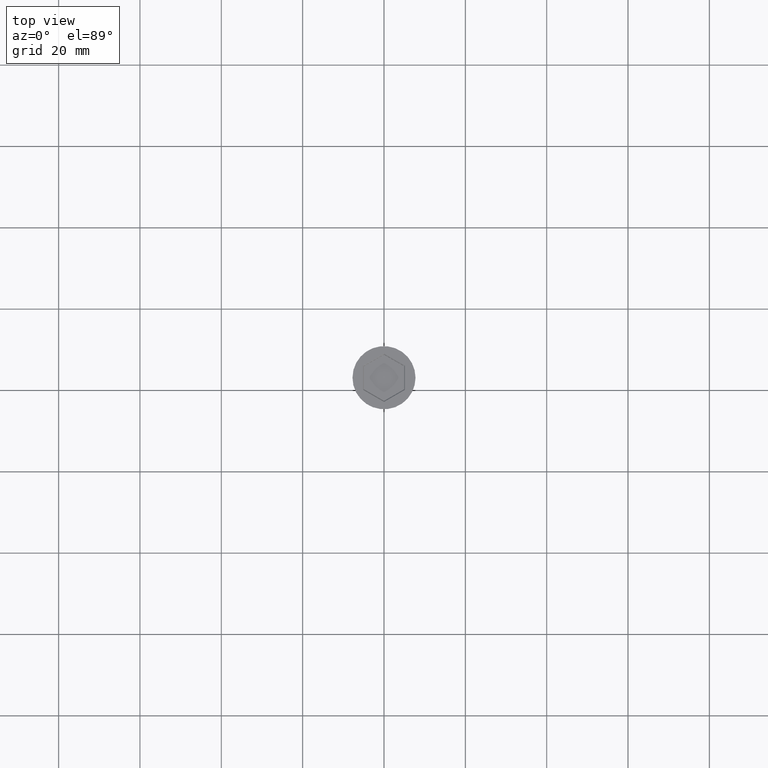
[diagram: clean part render]
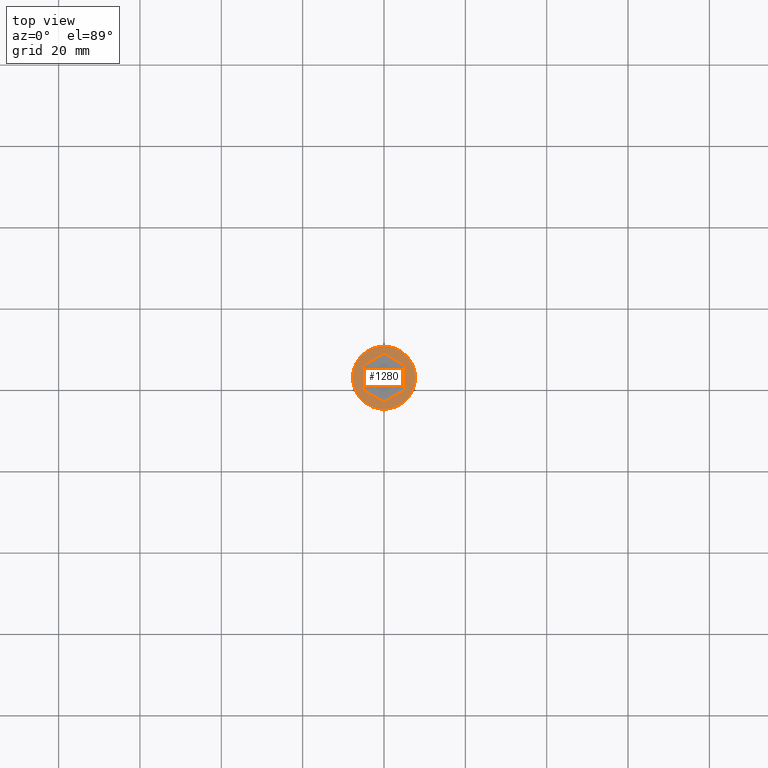
[diagram: same view with one face highlighted and labeled with its STEP entity id]
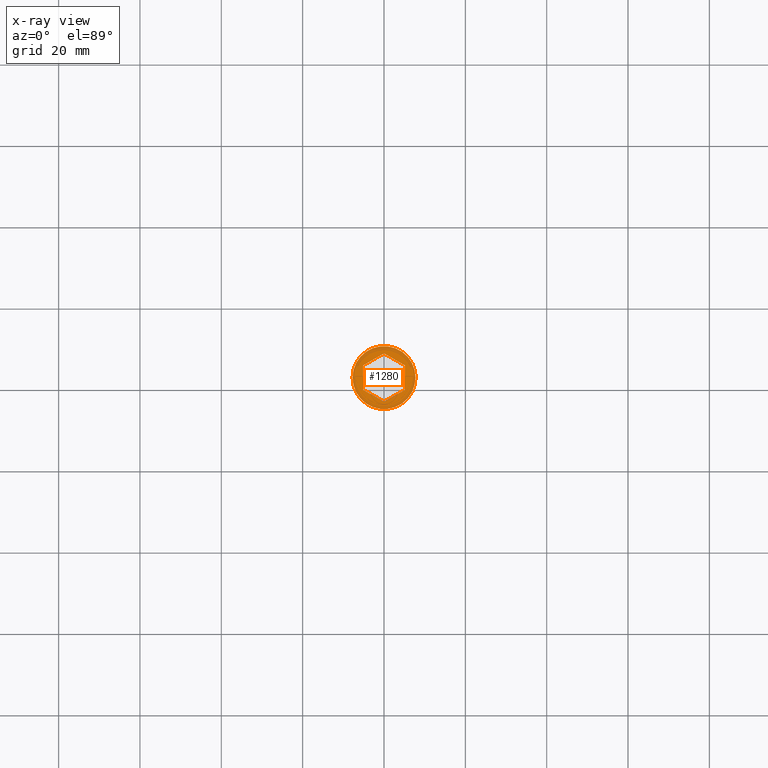
[diagram: x-ray of the same camera — body ghosted, the highlighted face saturated]
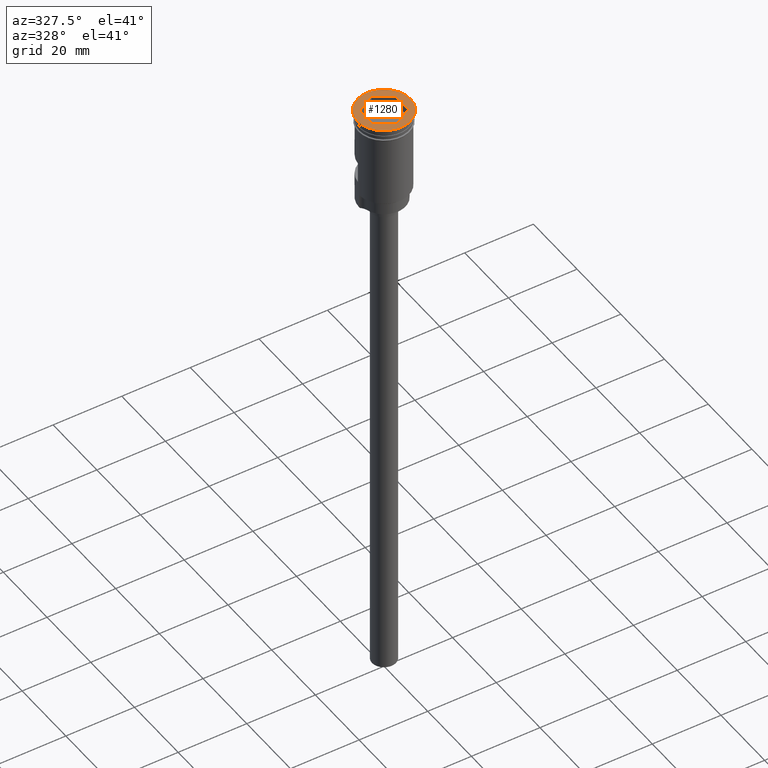
[diagram: same view with one face highlighted and labeled with its STEP entity id]
A machine part, top view. The second image highlights one B-rep face of the part: STEP entity #1280.
The next image is the same camera in x-ray: the body ghosted, the highlighted face saturated — about 0% of this face is hidden behind the body in this view.
A second angle (auxiliary view) of the same face is appended — the face is thin or edge-on in the first view.
In plain terms, the highlighted planar face has unit normal (0, -0, 1).
Its self-contained STEP definition (entity closure, byte-faithful):
#11 = LINE ( 'NONE', #252, #698 ) ;
#13 = CARTESIAN_POINT ( 'NONE',  ( -1.734199444926773404E-16, 5.946707772653141433, 0.000000000000000000 ) ) ;
#16 = VECTOR ( 'NONE', #426, 1000.000000000000114 ) ;
#37 = PLANE ( 'NONE',  #195 ) ;
#40 = LINE ( 'NONE', #897, #609 ) ;
#56 = CARTESIAN_POINT ( 'NONE',  ( 0.09999999999999799327, -5.888972745734180947, 0.000000000000000000 ) ) ;
#84 = CARTESIAN_POINT ( 'NONE',  ( 0.000000000000000000, 0.000000000000000000, 0.000000000000000000 ) ) ;
#109 = ORIENTED_EDGE ( 'NONE', *, *, #676, .T. ) ;
#114 = VECTOR ( 'NONE', #207, 1000.000000000000114 ) ;
#119 = CARTESIAN_POINT ( 'NONE',  ( -6.009497731616443387E-16, -5.946707772653142321, 0.000000000000000000 ) ) ;
#120 = CARTESIAN_POINT ( 'NONE',  ( 7.750000000000000000, 0.000000000000000000, 0.000000000000000000 ) ) ;
#181 = VERTEX_POINT ( 'NONE', #683 ) ;
#195 = AXIS2_PLACEMENT_3D ( 'NONE', #1008, #1027, #1507 ) ;
#196 = DIRECTION ( 'NONE',  ( -0.000000000000000000, -0.000000000000000000, 1.000000000000000000 ) ) ;
#207 = DIRECTION ( 'NONE',  ( 0.8660254037844385966, 0.4999999999999999445, 0.000000000000000000 ) ) ;
#229 = DIRECTION ( 'NONE',  ( -0.000000000000000000, -0.000000000000000000, 1.000000000000000000 ) ) ;
#252 = CARTESIAN_POINT ( 'NONE',  ( 5.149999999999997691, -2.857883832488648412, 0.000000000000000000 ) ) ;
#269 = ORIENTED_EDGE ( 'NONE', *, *, #852, .T. ) ;
#274 = DIRECTION ( 'NONE',  ( 0.000000000000000000, 1.000000000000000000, 0.000000000000000000 ) ) ;
#275 = ORIENTED_EDGE ( 'NONE', *, *, #715, .T. ) ;
#293 = CARTESIAN_POINT ( 'NONE',  ( 5.149999999999997691, -2.973353886326571605, 0.000000000000000000 ) ) ;
#313 = CARTESIAN_POINT ( 'NONE',  ( -5.149999999999997691, -2.973353886326571160, 0.000000000000000000 ) ) ;
#314 = DIRECTION ( 'NONE',  ( -0.8660254037844387076, -0.4999999999999998890, 0.000000000000000000 ) ) ;
#345 = AXIS2_PLACEMENT_3D ( 'NONE', #84, #229, #575 ) ;
#365 = ORIENTED_EDGE ( 'NONE', *, *, #707, .T. ) ;
#426 = DIRECTION ( 'NONE',  ( -0.8660254037844385966, 0.5000000000000001110, 0.000000000000000000 ) ) ;
#444 = VERTEX_POINT ( 'NONE', #13 ) ;
#457 = CARTESIAN_POINT ( 'NONE',  ( -0.09999999999999802103, 5.888972745734180059, 0.000000000000000000 ) ) ;
#464 = CARTESIAN_POINT ( 'NONE',  ( -7.750000000000000000, 9.491012693391987787E-16, 0.000000000000000000 ) ) ;
#495 = CARTESIAN_POINT ( 'NONE',  ( -5.149999999999997691, 2.973353886326570272, 0.000000000000000000 ) ) ;
#533 = ORIENTED_EDGE ( 'NONE', *, *, #937, .T. ) ;
#565 = LINE ( 'NONE', #805, #16 ) ;
#568 = LINE ( 'NONE', #457, #114 ) ;
#569 = ORIENTED_EDGE ( 'NONE', *, *, #814, .T. ) ;
#575 = DIRECTION ( 'NONE',  ( 1.000000000000000000, 0.000000000000000000, 0.000000000000000000 ) ) ;
#609 = VECTOR ( 'NONE', #274, 1000.000000000000000 ) ;
#643 = DIRECTION ( 'NONE',  ( -1.517489493673898021E-16, -1.000000000000000000, 0.000000000000000000 ) ) ;
#663 = AXIS2_PLACEMENT_3D ( 'NONE', #820, #196, #701 ) ;
#676 = EDGE_CURVE ( 'NONE', #908, #444, #568, .T. ) ;
#683 = CARTESIAN_POINT ( 'NONE',  ( 5.149999999999998579, 2.973353886326570272, 0.000000000000000000 ) ) ;
#698 = VECTOR ( 'NONE', #643, 1000.000000000000000 ) ;
#701 = DIRECTION ( 'NONE',  ( 1.000000000000000000, 0.000000000000000000, 0.000000000000000000 ) ) ;
#707 = EDGE_CURVE ( 'NONE', #444, #181, #1206, .T. ) ;
#715 = EDGE_CURVE ( 'NONE', #1503, #787, #871, .T. ) ;
#782 = FACE_BOUND ( 'NONE', #1120, .T. ) ;
#787 = VERTEX_POINT ( 'NONE', #120 ) ;
#805 = CARTESIAN_POINT ( 'NONE',  ( -5.049999999999998046, -3.031088913245533867, 0.000000000000000000 ) ) ;
#814 = EDGE_CURVE ( 'NONE', #787, #1503, #1550, .T. ) ;
#820 = CARTESIAN_POINT ( 'NONE',  ( 0.000000000000000000, 0.000000000000000000, 0.000000000000000000 ) ) ;
#852 = EDGE_CURVE ( 'NONE', #1461, #908, #40, .T. ) ;
#856 = ORIENTED_EDGE ( 'NONE', *, *, #1334, .T. ) ;
#871 = CIRCLE ( 'NONE', #345, 7.750000000000000000 ) ;
#897 = CARTESIAN_POINT ( 'NONE',  ( -5.149999999999997691, 2.857883832488647524, 0.000000000000000000 ) ) ;
#908 = VERTEX_POINT ( 'NONE', #495 ) ;
#937 = EDGE_CURVE ( 'NONE', #1082, #1461, #565, .T. ) ;
#993 = EDGE_CURVE ( 'NONE', #1407, #1082, #1041, .T. ) ;
#1008 = CARTESIAN_POINT ( 'NONE',  ( 0.000000000000000000, 0.000000000000000000, 0.000000000000000000 ) ) ;
#1027 = DIRECTION ( 'NONE',  ( 0.000000000000000000, -0.000000000000000000, 1.000000000000000000 ) ) ;
#1041 = LINE ( 'NONE', #56, #1574 ) ;
#1082 = VERTEX_POINT ( 'NONE', #119 ) ;
#1120 = EDGE_LOOP ( 'NONE', ( #533, #269, #109, #365, #856, #1289 ) ) ;
#1128 = VECTOR ( 'NONE', #1240, 1000.000000000000000 ) ;
#1206 = LINE ( 'NONE', #1446, #1128 ) ;
#1240 = DIRECTION ( 'NONE',  ( 0.8660254037844387076, -0.4999999999999998890, 0.000000000000000000 ) ) ;
#1280 = ADVANCED_FACE ( 'NONE', ( #782, #1363 ), #37, .T. ) ;
#1289 = ORIENTED_EDGE ( 'NONE', *, *, #993, .T. ) ;
#1334 = EDGE_CURVE ( 'NONE', #181, #1407, #11, .T. ) ;
#1363 = FACE_OUTER_BOUND ( 'NONE', #1583, .T. ) ;
#1407 = VERTEX_POINT ( 'NONE', #293 ) ;
#1446 = CARTESIAN_POINT ( 'NONE',  ( 5.049999999999998046, 3.031088913245532979, 0.000000000000000000 ) ) ;
#1461 = VERTEX_POINT ( 'NONE', #313 ) ;
#1503 = VERTEX_POINT ( 'NONE', #464 ) ;
#1507 = DIRECTION ( 'NONE',  ( 1.000000000000000000, 0.000000000000000000, 0.000000000000000000 ) ) ;
#1550 = CIRCLE ( 'NONE', #663, 7.750000000000000000 ) ;
#1574 = VECTOR ( 'NONE', #314, 1000.000000000000000 ) ;
#1583 = EDGE_LOOP ( 'NONE', ( #569, #275 ) ) ;